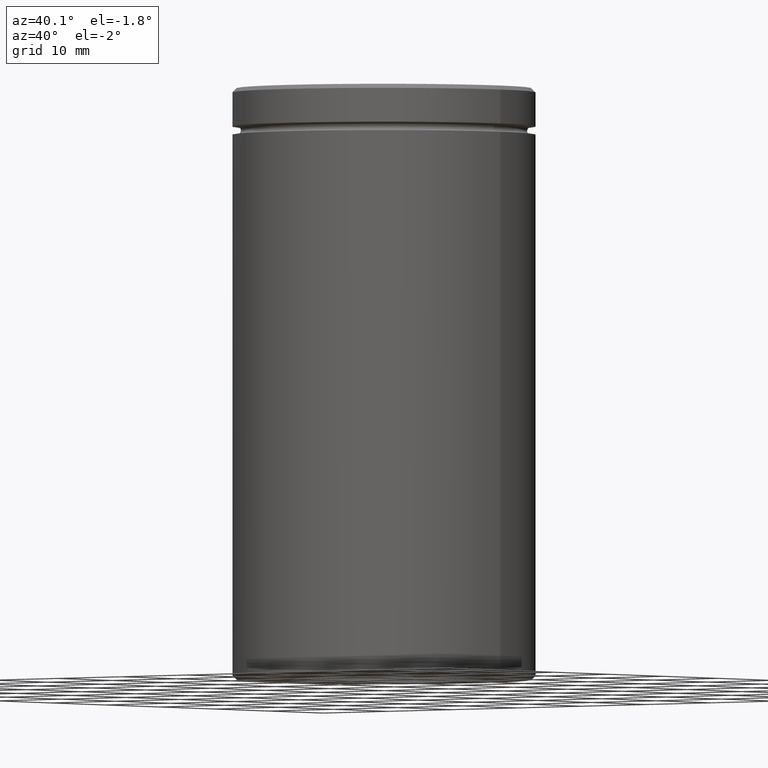
[diagram: clean part render]
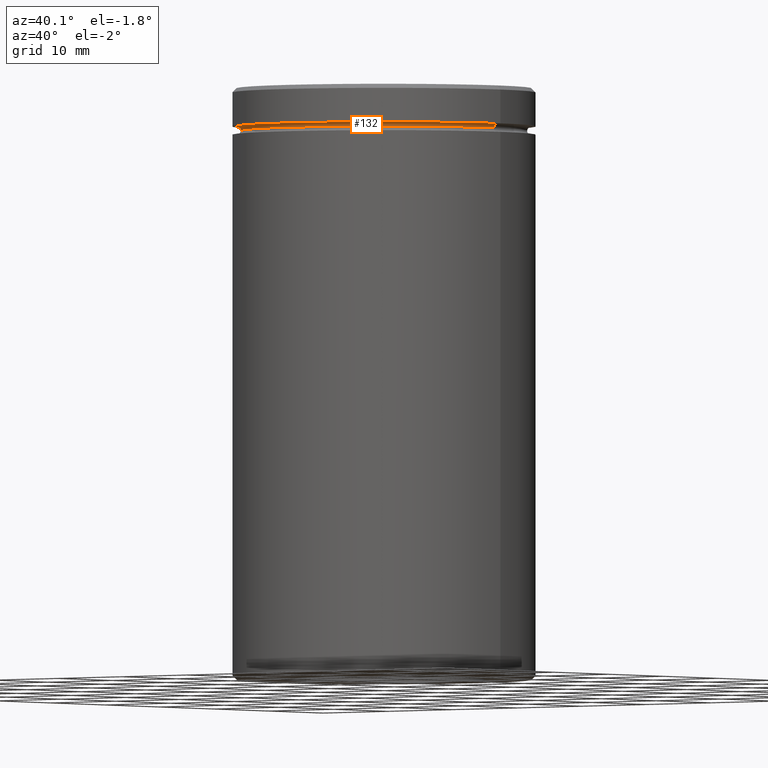
[diagram: same view with one face highlighted and labeled with its STEP entity id]
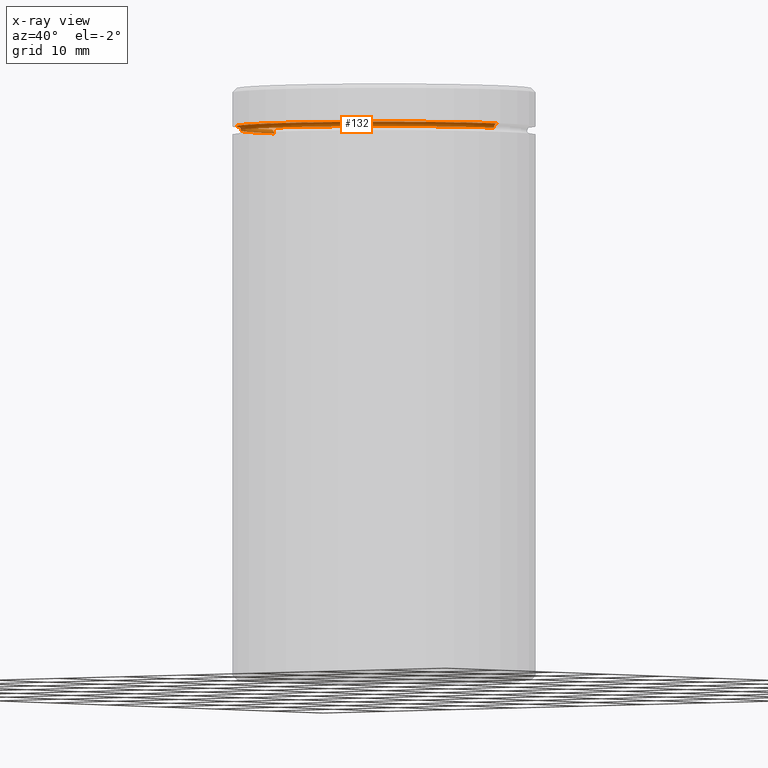
[diagram: x-ray of the same camera — body ghosted, the highlighted face saturated]
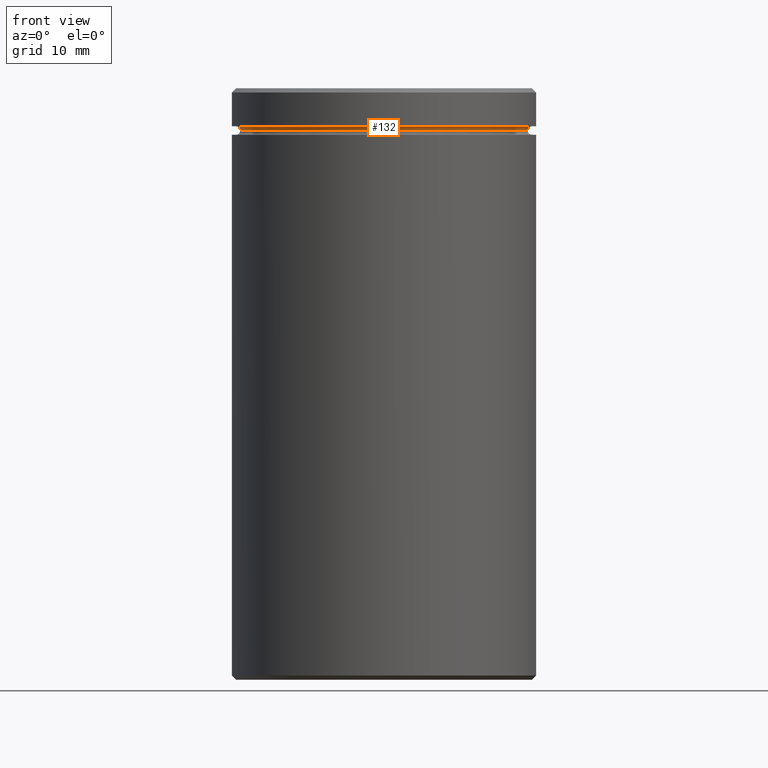
[diagram: same view with one face highlighted and labeled with its STEP entity id]
A machine part, auxiliary view. The second image highlights one B-rep face of the part: STEP entity #132.
The next image is the same camera in x-ray: the body ghosted, the highlighted face saturated — about 8% of this face is hidden behind the body in this view.
A second angle (front view) of the same face is appended — the face is thin or edge-on in the first view.
In plain terms, the highlighted toroidal blend (fillet) surface has major radius 17.5 mm and minor (blend) radius 0.5 mm.
Its self-contained STEP definition (entity closure, byte-faithful):
#27 = EDGE_LOOP ( 'NONE', ( #321, #308, #227, #87 ) ) ;
#35 = CARTESIAN_POINT ( 'NONE',  ( 16.99999999999999645, 0.000000000000000000, -4.999999999999999112 ) ) ;
#57 = AXIS2_PLACEMENT_3D ( 'NONE', #483, #226, #356 ) ;
#64 = AXIS2_PLACEMENT_3D ( 'NONE', #130, #86, #566 ) ;
#67 = DIRECTION ( 'NONE',  ( 0.000000000000000000, 0.000000000000000000, -1.000000000000000000 ) ) ;
#81 = CIRCLE ( 'NONE', #376, 0.5000000000000004441 ) ;
#86 = DIRECTION ( 'NONE',  ( -0.000000000000000000, -1.000000000000000000, -0.000000000000000000 ) ) ;
#87 = ORIENTED_EDGE ( 'NONE', *, *, #313, .F. ) ;
#97 = VERTEX_POINT ( 'NONE', #243 ) ;
#130 = CARTESIAN_POINT ( 'NONE',  ( -17.49999999999999645, 0.000000000000000000, -5.000000000000000888 ) ) ;
#132 = ADVANCED_FACE ( 'NONE', ( #422 ), #253, .F. ) ;
#134 = DIRECTION ( 'NONE',  ( -1.000000000000000000, -1.224646799147349509E-16, 0.000000000000000000 ) ) ;
#136 = DIRECTION ( 'NONE',  ( 1.000000000000000000, 0.000000000000000000, 0.000000000000000000 ) ) ;
#226 = DIRECTION ( 'NONE',  ( -0.000000000000000000, -0.000000000000000000, 1.000000000000000000 ) ) ;
#227 = ORIENTED_EDGE ( 'NONE', *, *, #249, .F. ) ;
#238 = EDGE_CURVE ( 'NONE', #437, #479, #501, .T. ) ;
#243 = CARTESIAN_POINT ( 'NONE',  ( 17.49999999999999645, 2.143131898507867854E-15, -4.500000000000000888 ) ) ;
#249 = EDGE_CURVE ( 'NONE', #527, #97, #465, .T. ) ;
#253 = TOROIDAL_SURFACE ( 'NONE', #449, 17.49999999999999645, 0.5000000000000000000 ) ;
#258 = CARTESIAN_POINT ( 'NONE',  ( -17.49999999999999645, 0.000000000000000000, -4.500000000000000888 ) ) ;
#286 = CIRCLE ( 'NONE', #64, 0.5000000000000004441 ) ;
#292 = CARTESIAN_POINT ( 'NONE',  ( 0.000000000000000000, 0.000000000000000000, -5.000000000000000888 ) ) ;
#308 = ORIENTED_EDGE ( 'NONE', *, *, #331, .T. ) ;
#313 = EDGE_CURVE ( 'NONE', #437, #527, #286, .T. ) ;
#314 = AXIS2_PLACEMENT_3D ( 'NONE', #447, #528, #136 ) ;
#321 = ORIENTED_EDGE ( 'NONE', *, *, #238, .T. ) ;
#331 = EDGE_CURVE ( 'NONE', #479, #97, #81, .T. ) ;
#334 = CARTESIAN_POINT ( 'NONE',  ( -16.99999999999999645, 2.112515728529184067E-15, -4.999999999999999112 ) ) ;
#356 = DIRECTION ( 'NONE',  ( -1.000000000000000000, 0.000000000000000000, 0.000000000000000000 ) ) ;
#372 = DIRECTION ( 'NONE',  ( -1.224646799147353207E-16, 1.000000000000000000, 0.000000000000000000 ) ) ;
#376 = AXIS2_PLACEMENT_3D ( 'NONE', #460, #372, #134 ) ;
#422 = FACE_OUTER_BOUND ( 'NONE', #27, .T. ) ;
#437 = VERTEX_POINT ( 'NONE', #334 ) ;
#447 = CARTESIAN_POINT ( 'NONE',  ( 0.000000000000000000, 0.000000000000000000, -4.999999999999999112 ) ) ;
#449 = AXIS2_PLACEMENT_3D ( 'NONE', #292, #67, #461 ) ;
#460 = CARTESIAN_POINT ( 'NONE',  ( 17.49999999999999645, 2.143131898507867854E-15, -5.000000000000000888 ) ) ;
#461 = DIRECTION ( 'NONE',  ( -1.000000000000000000, 0.000000000000000000, 0.000000000000000000 ) ) ;
#465 = CIRCLE ( 'NONE', #57, 17.49999999999999645 ) ;
#479 = VERTEX_POINT ( 'NONE', #35 ) ;
#483 = CARTESIAN_POINT ( 'NONE',  ( 0.000000000000000000, 0.000000000000000000, -4.500000000000000888 ) ) ;
#501 = CIRCLE ( 'NONE', #314, 16.99999999999999645 ) ;
#527 = VERTEX_POINT ( 'NONE', #258 ) ;
#528 = DIRECTION ( 'NONE',  ( -0.000000000000000000, -0.000000000000000000, 1.000000000000000000 ) ) ;
#566 = DIRECTION ( 'NONE',  ( 0.000000000000000000, 0.000000000000000000, -1.000000000000000000 ) ) ;